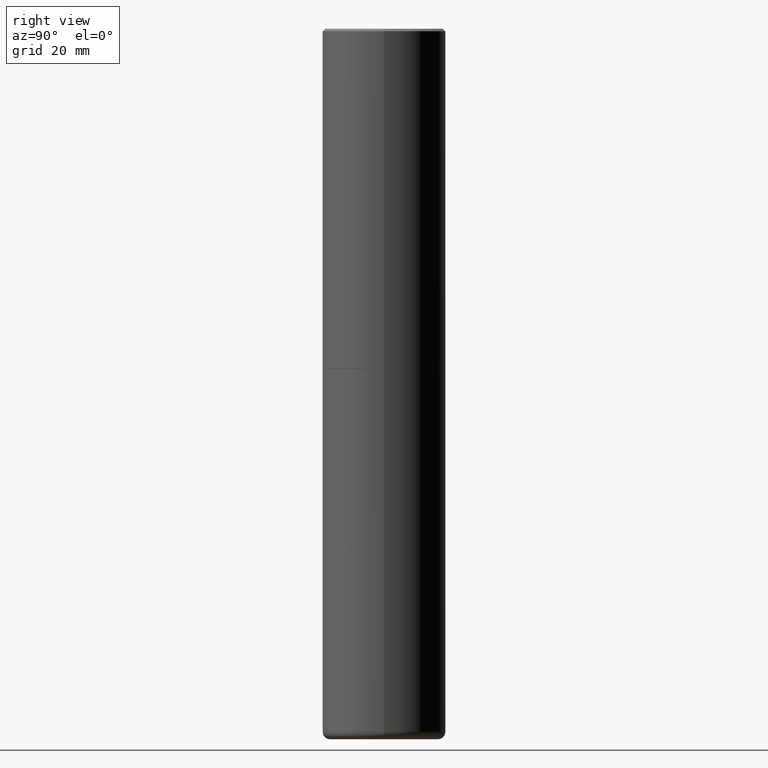
[diagram: clean part render]
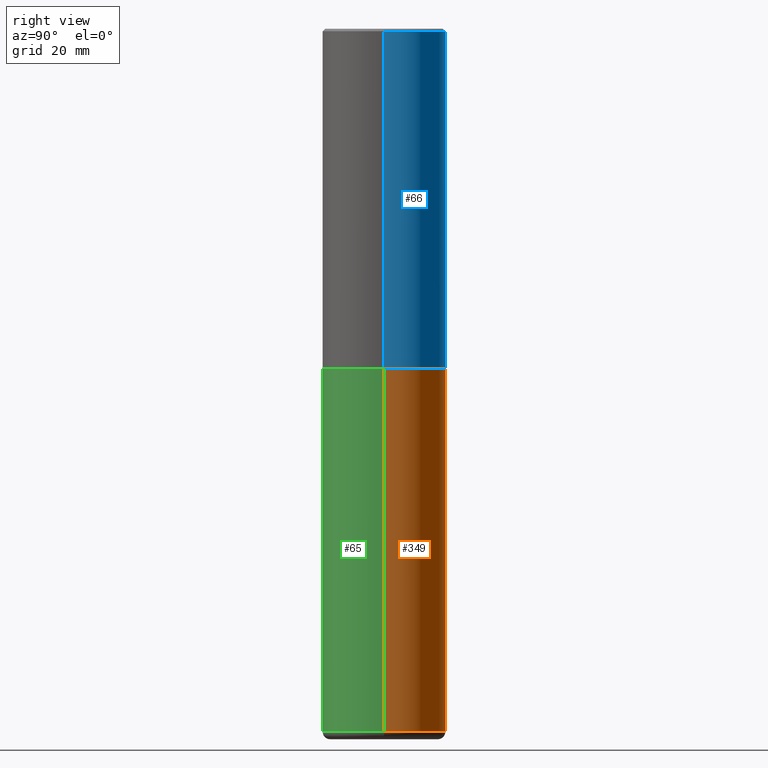
[diagram: same view with three faces highlighted in distinct colors, each labeled with its STEP entity id]
A machine part, right view with three faces highlighted in distinct colors.
Their STEP definitions:

[orange] entity #349 — the highlighted cylindrical surface (partial cylindrical patch) has radius 12.7 mm, axis along (-0, 0, 1).
#32 = DIRECTION ( 'NONE',  ( -2.445468806185136877E-29, 3.491481338843145188E-15, 1.000000000000000000 ) ) ;
#34 = VERTEX_POINT ( 'NONE', #363 ) ;
#43 = VERTEX_POINT ( 'NONE', #205 ) ;
#61 = CARTESIAN_POINT ( 'NONE',  ( 6.725039217009123399E-29, -9.601573681818648281E-15, -2.749999999999999556 ) ) ;
#92 = VERTEX_POINT ( 'NONE', #302 ) ;
#94 = DIRECTION ( 'NONE',  ( 1.000000000000000000, -6.982962677686266711E-15, 0.000000000000000000 ) ) ;
#99 = AXIS2_PLACEMENT_3D ( 'NONE', #144, #407, #399 ) ;
#101 = VECTOR ( 'NONE', #379, 39.37007874015748143 ) ;
#111 = VERTEX_POINT ( 'NONE', #330 ) ;
#114 = AXIS2_PLACEMENT_3D ( 'NONE', #61, #387, #94 ) ;
#144 = CARTESIAN_POINT ( 'NONE',  ( 0.000000000000000000, 0.000000000000000000, 0.000000000000000000 ) ) ;
#151 = DIRECTION ( 'NONE',  ( -2.445468806185136597E-29, 3.491481338843145583E-15, 1.000000000000000000 ) ) ;
#165 = ORIENTED_EDGE ( 'NONE', *, *, #191, .F. ) ;
#168 = CYLINDRICAL_SURFACE ( 'NONE', #99, 0.5000000000000000000 ) ;
#169 = ORIENTED_EDGE ( 'NONE', *, *, #356, .T. ) ;
#191 = EDGE_CURVE ( 'NONE', #111, #92, #410, .T. ) ;
#198 = VECTOR ( 'NONE', #32, 39.37007874015748143 ) ;
#205 = CARTESIAN_POINT ( 'NONE',  ( -0.5000000000000000000, -1.118133757111757137E-14, -2.749999999999999556 ) ) ;
#219 = CARTESIAN_POINT ( 'NONE',  ( 0.5000000000000000000, -3.491481338843133355E-15, 2.438088387897967896E-29 ) ) ;
#223 = EDGE_CURVE ( 'NONE', #34, #43, #284, .T. ) ;
#226 = AXIS2_PLACEMENT_3D ( 'NONE', #306, #151, #402 ) ;
#273 = EDGE_CURVE ( 'NONE', #92, #43, #296, .T. ) ;
#284 = LINE ( 'NONE', #414, #198 ) ;
#296 = CIRCLE ( 'NONE', #114, 0.5000000000000000000 ) ;
#302 = CARTESIAN_POINT ( 'NONE',  ( 0.5000000000000000000, -1.309305502066178164E-14, -2.749999999999999556 ) ) ;
#305 = ORIENTED_EDGE ( 'NONE', *, *, #273, .F. ) ;
#306 = CARTESIAN_POINT ( 'NONE',  ( 1.391471750719342616E-28, -1.986652881801749632E-14, -5.689999999999999503 ) ) ;
#313 = FACE_OUTER_BOUND ( 'NONE', #324, .T. ) ;
#324 = EDGE_LOOP ( 'NONE', ( #169, #400, #305, #165 ) ) ;
#330 = CARTESIAN_POINT ( 'NONE',  ( 0.5000000000000002220, -2.335801015686062967E-14, -5.689999999999999503 ) ) ;
#349 = ADVANCED_FACE ( 'NONE', ( #313 ), #168, .T. ) ;
#356 = EDGE_CURVE ( 'NONE', #111, #34, #417, .T. ) ;
#363 = CARTESIAN_POINT ( 'NONE',  ( -0.5000000000000002220, -1.631381513921699223E-14, -5.689999999999999503 ) ) ;
#379 = DIRECTION ( 'NONE',  ( -2.445468806185136877E-29, 3.491481338843145188E-15, 1.000000000000000000 ) ) ;
#387 = DIRECTION ( 'NONE',  ( -2.445468806185136597E-29, 3.491481338843145583E-15, 1.000000000000000000 ) ) ;
#399 = DIRECTION ( 'NONE',  ( 1.000000000000000000, -6.982962677686266711E-15, 4.876176775795935793E-29 ) ) ;
#400 = ORIENTED_EDGE ( 'NONE', *, *, #223, .T. ) ;
#402 = DIRECTION ( 'NONE',  ( 1.000000000000000000, -6.982962677686263555E-15, 0.000000000000000000 ) ) ;
#407 = DIRECTION ( 'NONE',  ( -2.445468806185136597E-29, 3.491481338843145583E-15, 1.000000000000000000 ) ) ;
#410 = LINE ( 'NONE', #219, #101 ) ;
#414 = CARTESIAN_POINT ( 'NONE',  ( -0.5000000000000000000, 3.552713678800500929E-15, -2.459467545127452891E-29 ) ) ;
#417 = CIRCLE ( 'NONE', #226, 0.4999999999999999445 ) ;

[blue] entity #66 — the highlighted cylindrical surface (partial cylindrical patch) has radius 12.7 mm, axis along (-0, 0, 1).
#4 = AXIS2_PLACEMENT_3D ( 'NONE', #415, #126, #310 ) ;
#8 = FACE_OUTER_BOUND ( 'NONE', #181, .T. ) ;
#12 = CARTESIAN_POINT ( 'NONE',  ( 0.000000000000000000, 0.000000000000000000, 0.000000000000000000 ) ) ;
#42 = CARTESIAN_POINT ( 'NONE',  ( -0.5000000000000003331, -1.281242234827830793E-15, -2.748999999999999666 ) ) ;
#58 = CARTESIAN_POINT ( 'NONE',  ( -0.5000000000000001110, 3.421651712066270452E-15, -0.02000000000000010797 ) ) ;
#66 = ADVANCED_FACE ( 'NONE', ( #8 ), #266, .T. ) ;
#67 = AXIS2_PLACEMENT_3D ( 'NONE', #412, #225, #87 ) ;
#75 = DIRECTION ( 'NONE',  ( -2.445468806185136597E-29, 3.491481338843145583E-15, 1.000000000000000000 ) ) ;
#87 = DIRECTION ( 'NONE',  ( 1.000000000000000000, -6.982962677686265922E-15, 0.000000000000000000 ) ) ;
#93 = CARTESIAN_POINT ( 'NONE',  ( -0.5000000000000002220, 3.552713678800502507E-15, -2.459467545127454012E-29 ) ) ;
#103 = DIRECTION ( 'NONE',  ( -2.445468806185136877E-29, 3.491481338843145188E-15, 1.000000000000000000 ) ) ;
#120 = VERTEX_POINT ( 'NONE', #42 ) ;
#126 = DIRECTION ( 'NONE',  ( -2.445468806185136597E-29, 3.491481338843145583E-15, 1.000000000000000000 ) ) ;
#137 = ORIENTED_EDGE ( 'NONE', *, *, #325, .T. ) ;
#161 = EDGE_CURVE ( 'NONE', #331, #211, #190, .T. ) ;
#181 = EDGE_LOOP ( 'NONE', ( #208, #137, #408, #204 ) ) ;
#185 = CARTESIAN_POINT ( 'NONE',  ( 0.5000000000000001110, -3.500078625662629868E-15, -0.02000000000000010797 ) ) ;
#190 = LINE ( 'NONE', #252, #274 ) ;
#196 = EDGE_CURVE ( 'NONE', #211, #278, #317, .T. ) ;
#204 = ORIENTED_EDGE ( 'NONE', *, *, #161, .F. ) ;
#208 = ORIENTED_EDGE ( 'NONE', *, *, #322, .T. ) ;
#211 = VERTEX_POINT ( 'NONE', #185 ) ;
#225 = DIRECTION ( 'NONE',  ( -2.445468806185136597E-29, 3.491481338843145583E-15, 1.000000000000000000 ) ) ;
#252 = CARTESIAN_POINT ( 'NONE',  ( 0.5000000000000002220, -3.491481338843134933E-15, 2.438088387897969017E-29 ) ) ;
#254 = VECTOR ( 'NONE', #103, 39.37007874015748143 ) ;
#266 = CYLINDRICAL_SURFACE ( 'NONE', #404, 0.5000000000000002220 ) ;
#274 = VECTOR ( 'NONE', #279, 39.37007874015748143 ) ;
#278 = VERTEX_POINT ( 'NONE', #58 ) ;
#279 = DIRECTION ( 'NONE',  ( -2.445468806185136877E-29, 3.491481338843145188E-15, 1.000000000000000000 ) ) ;
#310 = DIRECTION ( 'NONE',  ( 1.000000000000000000, -6.982962677686265922E-15, 0.000000000000000000 ) ) ;
#315 = CARTESIAN_POINT ( 'NONE',  ( 0.5000000000000003331, -1.308956353932294179E-14, -2.748999999999999666 ) ) ;
#317 = CIRCLE ( 'NONE', #67, 0.5000000000000001110 ) ;
#322 = EDGE_CURVE ( 'NONE', #331, #120, #353, .T. ) ;
#325 = EDGE_CURVE ( 'NONE', #120, #278, #329, .T. ) ;
#329 = LINE ( 'NONE', #93, #254 ) ;
#331 = VERTEX_POINT ( 'NONE', #315 ) ;
#353 = CIRCLE ( 'NONE', #4, 0.5000000000000003331 ) ;
#404 = AXIS2_PLACEMENT_3D ( 'NONE', #12, #75, #406 ) ;
#406 = DIRECTION ( 'NONE',  ( 1.000000000000000000, -6.982962677686266711E-15, 4.876176775795935793E-29 ) ) ;
#408 = ORIENTED_EDGE ( 'NONE', *, *, #196, .F. ) ;
#412 = CARTESIAN_POINT ( 'NONE',  ( 4.890937612370299433E-31, -6.982962677686328587E-17, -0.02000000000000010797 ) ) ;
#415 = CARTESIAN_POINT ( 'NONE',  ( 6.722593748202938917E-29, -9.598082200479805274E-15, -2.748999999999999666 ) ) ;

[green] entity #65 — the highlighted cylindrical surface (partial cylindrical patch) has radius 12.7 mm, axis along (-0, 0, 1).
#11 = EDGE_LOOP ( 'NONE', ( #364, #367, #240, #49 ) ) ;
#32 = DIRECTION ( 'NONE',  ( -2.445468806185136877E-29, 3.491481338843145188E-15, 1.000000000000000000 ) ) ;
#34 = VERTEX_POINT ( 'NONE', #363 ) ;
#43 = VERTEX_POINT ( 'NONE', #205 ) ;
#49 = ORIENTED_EDGE ( 'NONE', *, *, #326, .F. ) ;
#65 = ADVANCED_FACE ( 'NONE', ( #164 ), #143, .T. ) ;
#92 = VERTEX_POINT ( 'NONE', #302 ) ;
#101 = VECTOR ( 'NONE', #379, 39.37007874015748143 ) ;
#111 = VERTEX_POINT ( 'NONE', #330 ) ;
#112 = DIRECTION ( 'NONE',  ( -2.445468806185136597E-29, 3.491481338843145583E-15, 1.000000000000000000 ) ) ;
#127 = AXIS2_PLACEMENT_3D ( 'NONE', #262, #258, #142 ) ;
#142 = DIRECTION ( 'NONE',  ( 1.000000000000000000, -6.982962677686266711E-15, 0.000000000000000000 ) ) ;
#143 = CYLINDRICAL_SURFACE ( 'NONE', #224, 0.5000000000000000000 ) ;
#155 = CARTESIAN_POINT ( 'NONE',  ( 1.391471750719342616E-28, -1.986652881801749632E-14, -5.689999999999999503 ) ) ;
#164 = FACE_OUTER_BOUND ( 'NONE', #11, .T. ) ;
#179 = CIRCLE ( 'NONE', #189, 0.4999999999999999445 ) ;
#189 = AXIS2_PLACEMENT_3D ( 'NONE', #155, #385, #320 ) ;
#191 = EDGE_CURVE ( 'NONE', #111, #92, #410, .T. ) ;
#198 = VECTOR ( 'NONE', #32, 39.37007874015748143 ) ;
#205 = CARTESIAN_POINT ( 'NONE',  ( -0.5000000000000000000, -1.118133757111757137E-14, -2.749999999999999556 ) ) ;
#212 = DIRECTION ( 'NONE',  ( 1.000000000000000000, -6.982962677686266711E-15, 4.876176775795935793E-29 ) ) ;
#219 = CARTESIAN_POINT ( 'NONE',  ( 0.5000000000000000000, -3.491481338843133355E-15, 2.438088387897967896E-29 ) ) ;
#223 = EDGE_CURVE ( 'NONE', #34, #43, #284, .T. ) ;
#224 = AXIS2_PLACEMENT_3D ( 'NONE', #332, #112, #212 ) ;
#240 = ORIENTED_EDGE ( 'NONE', *, *, #191, .T. ) ;
#258 = DIRECTION ( 'NONE',  ( -2.445468806185136597E-29, 3.491481338843145583E-15, 1.000000000000000000 ) ) ;
#262 = CARTESIAN_POINT ( 'NONE',  ( 6.725039217009123399E-29, -9.601573681818648281E-15, -2.749999999999999556 ) ) ;
#284 = LINE ( 'NONE', #414, #198 ) ;
#300 = CIRCLE ( 'NONE', #127, 0.5000000000000000000 ) ;
#302 = CARTESIAN_POINT ( 'NONE',  ( 0.5000000000000000000, -1.309305502066178164E-14, -2.749999999999999556 ) ) ;
#304 = EDGE_CURVE ( 'NONE', #34, #111, #179, .T. ) ;
#320 = DIRECTION ( 'NONE',  ( 1.000000000000000000, -6.982962677686263555E-15, 0.000000000000000000 ) ) ;
#326 = EDGE_CURVE ( 'NONE', #43, #92, #300, .T. ) ;
#330 = CARTESIAN_POINT ( 'NONE',  ( 0.5000000000000002220, -2.335801015686062967E-14, -5.689999999999999503 ) ) ;
#332 = CARTESIAN_POINT ( 'NONE',  ( 0.000000000000000000, 0.000000000000000000, 0.000000000000000000 ) ) ;
#363 = CARTESIAN_POINT ( 'NONE',  ( -0.5000000000000002220, -1.631381513921699223E-14, -5.689999999999999503 ) ) ;
#364 = ORIENTED_EDGE ( 'NONE', *, *, #223, .F. ) ;
#367 = ORIENTED_EDGE ( 'NONE', *, *, #304, .T. ) ;
#379 = DIRECTION ( 'NONE',  ( -2.445468806185136877E-29, 3.491481338843145188E-15, 1.000000000000000000 ) ) ;
#385 = DIRECTION ( 'NONE',  ( -2.445468806185136597E-29, 3.491481338843145583E-15, 1.000000000000000000 ) ) ;
#410 = LINE ( 'NONE', #219, #101 ) ;
#414 = CARTESIAN_POINT ( 'NONE',  ( -0.5000000000000000000, 3.552713678800500929E-15, -2.459467545127452891E-29 ) ) ;